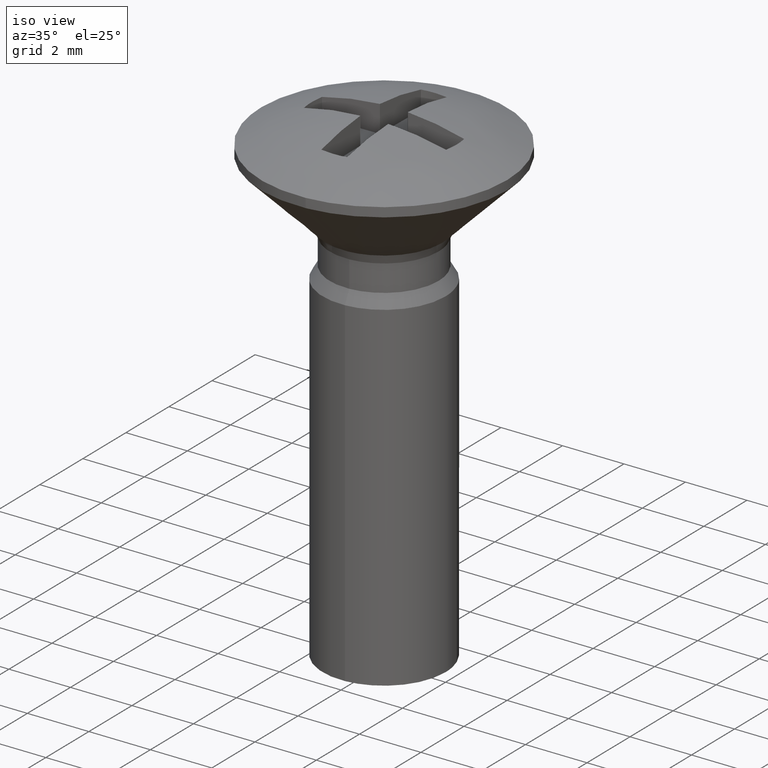
[diagram: clean part render]
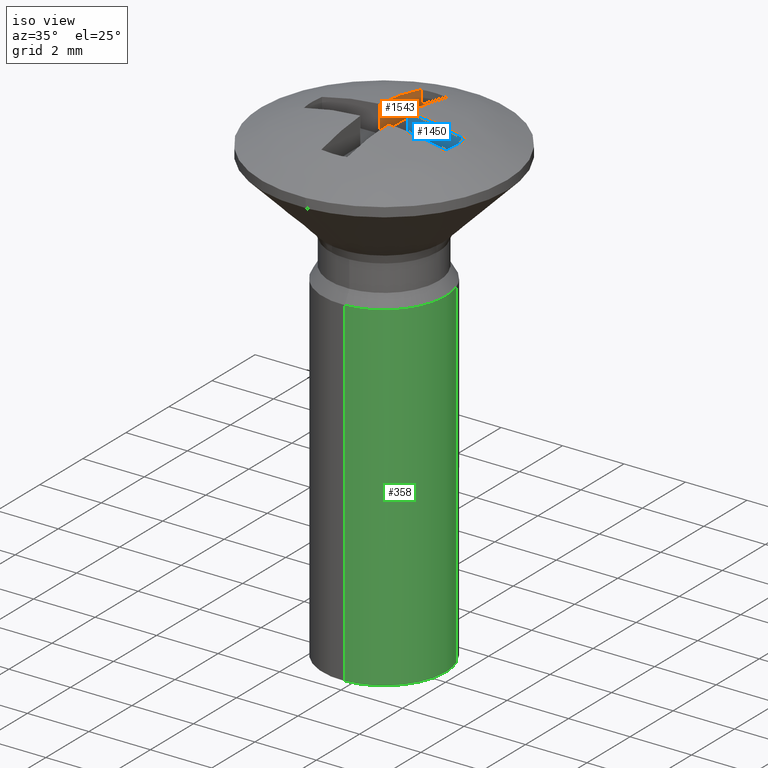
[diagram: same view with three faces highlighted in distinct colors, each labeled with its STEP entity id]
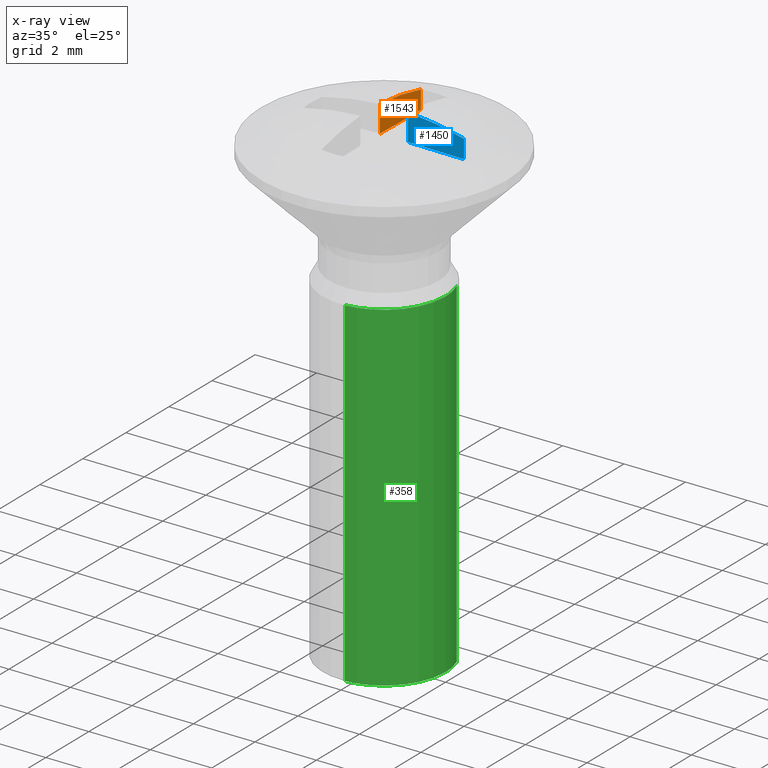
[diagram: x-ray of the same camera — body ghosted, the three highlighted faces saturated]
A machine part, iso view with three faces highlighted in distinct colors.
The next image is the same camera in x-ray (body ghosted, the three faces saturated) — at least one of them is partly hidden behind the body in this view.
Their STEP definitions:

[orange] entity #1543 — the highlighted face is a freeform B-spline surface patch.
#1029=CARTESIAN_POINT('',(-0.452394242445018,0.452593227179430,0.0));
#1030=VERTEX_POINT('',#1029);
#1031=CARTESIAN_POINT('',(-0.420014611924039,2.312160834753995,0.0));
#1032=VERTEX_POINT('',#1031);
#1033=CARTESIAN_POINT('',(-0.452394242445018,0.452593227179430,0.0));
#1034=CARTESIAN_POINT('',(-0.420014611924039,2.312160834753995,0.0));
#1035=QUASI_UNIFORM_CURVE('',1,(#1033,#1034),.UNSPECIFIED.,.F.,.U.);
#1036=EDGE_CURVE('',#1030,#1032,#1035,.T.);
#1161=CARTESIAN_POINT('',(-0.452394242445018,0.452593227179430,0.877989811291734));
#1162=VERTEX_POINT('',#1161);
#1163=CARTESIAN_POINT('',(-0.452394242445018,0.452593227179430,0.877989811291734));
#1164=CARTESIAN_POINT('',(-0.452394242445018,0.452593227179430,0.0));
#1165=QUASI_UNIFORM_CURVE('',1,(#1163,#1164),.UNSPECIFIED.,.F.,.U.);
#1166=EDGE_CURVE('',#1162,#1030,#1165,.T.);
#1495=CARTESIAN_POINT('',(-0.420014611924039,2.312160834753995,0.599434616879058));
#1496=VERTEX_POINT('',#1495);
#1510=CARTESIAN_POINT('',(-0.420014611924039,2.312160834753995,0.599434616879058));
#1511=CARTESIAN_POINT('',(-0.420014611924039,2.312160834753995,0.0));
#1512=QUASI_UNIFORM_CURVE('',1,(#1510,#1511),.UNSPECIFIED.,.F.,.U.);
#1513=EDGE_CURVE('',#1496,#1032,#1512,.T.);
#1520=CARTESIAN_POINT('',(-0.418397251266016,2.405046128410401,-0.043855589372308));
#1521=CARTESIAN_POINT('',(-0.454011605708511,0.359707783890555,-0.043855589372308));
#1522=CARTESIAN_POINT('',(-0.418397251266016,2.405046128410401,0.921845424213563));
#1523=CARTESIAN_POINT('',(-0.454011605708511,0.359707783890555,0.921845424213563));
#1524=B_SPLINE_SURFACE_WITH_KNOTS('',1,1,((#1520,#1522),(#1521,#1523)),.UNSPECIFIED.,.F.,.F.,.U.,(2,2),(2,2),(0.0,2.045648387628124),(0.041708334948495,0.958291687403247),.UNSPECIFIED.);
#1525=ORIENTED_EDGE('',*,*,#1166,.T.);
#1526=ORIENTED_EDGE('',*,*,#1036,.T.);
#1527=ORIENTED_EDGE('',*,*,#1513,.F.);
#1528=CARTESIAN_POINT('',(-0.452394242445018,0.452593227179430,0.877989811291734));
#1529=CARTESIAN_POINT('',(-0.435958736481214,1.396487089235294,0.832936135225205));
#1530=CARTESIAN_POINT('',(-0.420014611924039,2.312160834753995,0.599434616879058));
#1538=(BOUNDED_CURVE()B_SPLINE_CURVE(2,(#1528,#1529,#1530),.UNSPECIFIED.,.F.,.U.)CURVE()GEOMETRIC_REPRESENTATION_ITEM()QUASI_UNIFORM_CURVE()RATIONAL_B_SPLINE_CURVE((1.0,0.994905889874831,1.0))REPRESENTATION_ITEM(''));
#1539=EDGE_CURVE('',#1162,#1496,#1538,.T.);
#1540=ORIENTED_EDGE('',*,*,#1539,.F.);
#1541=EDGE_LOOP('',(#1525,#1526,#1527,#1540));
#1542=FACE_OUTER_BOUND('',#1541,.T.);
#1543=ADVANCED_FACE('',(#1542),#1524,.F.);

[blue] entity #1450 — the highlighted face is a freeform B-spline surface patch.
#1103=CARTESIAN_POINT('',(2.312163372429150,0.420000641900767,0.0));
#1104=VERTEX_POINT('',#1103);
#1118=CARTESIAN_POINT('',(0.452425794675152,0.452592674224369,0.0));
#1119=VERTEX_POINT('',#1118);
#1120=CARTESIAN_POINT('',(0.452425794675152,0.452592674224369,0.0));
#1121=CARTESIAN_POINT('',(2.312163372429150,0.420000641900767,0.0));
#1122=QUASI_UNIFORM_CURVE('',1,(#1120,#1121),.UNSPECIFIED.,.F.,.U.);
#1123=EDGE_CURVE('',#1119,#1104,#1122,.T.);
#1396=CARTESIAN_POINT('',(2.312163372429150,0.420000641900767,0.599434616879058));
#1397=VERTEX_POINT('',#1396);
#1411=CARTESIAN_POINT('',(2.312163372429150,0.420000641900767,0.599434616879058));
#1412=CARTESIAN_POINT('',(2.312163372429150,0.420000641900767,0.0));
#1413=QUASI_UNIFORM_CURVE('',1,(#1411,#1412),.UNSPECIFIED.,.F.,.U.);
#1414=EDGE_CURVE('',#1397,#1104,#1413,.T.);
#1421=CARTESIAN_POINT('',(2.405057243375545,0.418372670255323,-0.043855511048906));
#1422=CARTESIAN_POINT('',(0.359531857219359,0.454220647035396,-0.043855511048906));
#1423=CARTESIAN_POINT('',(2.405057243375545,0.418372670255323,0.921843777853990));
#1424=CARTESIAN_POINT('',(0.359531857219359,0.454220647035396,0.921843777853990));
#1425=B_SPLINE_SURFACE_WITH_KNOTS('',1,1,((#1421,#1423),(#1422,#1424)),.UNSPECIFIED.,.F.,.F.,.U.,(2,2),(2,2),(0.0,2.045839481202921),(0.041708337925747,0.958291624821350),.UNSPECIFIED.);
#1426=CARTESIAN_POINT('',(0.452425794675152,0.452592674224370,0.877988306054220));
#1427=VERTEX_POINT('',#1426);
#1428=CARTESIAN_POINT('',(0.452425794675152,0.452592674224370,0.877988306054220));
#1429=CARTESIAN_POINT('',(0.452425794675152,0.452592674224369,0.0));
#1430=QUASI_UNIFORM_CURVE('',1,(#1428,#1429),.UNSPECIFIED.,.F.,.U.);
#1431=EDGE_CURVE('',#1427,#1119,#1430,.T.);
#1432=ORIENTED_EDGE('',*,*,#1431,.T.);
#1433=ORIENTED_EDGE('',*,*,#1123,.T.);
#1434=ORIENTED_EDGE('',*,*,#1414,.F.);
#1435=CARTESIAN_POINT('',(0.452425794675152,0.452592674224370,0.877988306054220));
#1436=CARTESIAN_POINT('',(1.396405856426563,0.436049357009370,0.832952986524636));
#1437=CARTESIAN_POINT('',(2.312163372429150,0.420000641900767,0.599434616879058));
#1445=(BOUNDED_CURVE()B_SPLINE_CURVE(2,(#1435,#1436,#1437),.UNSPECIFIED.,.F.,.U.)CURVE()GEOMETRIC_REPRESENTATION_ITEM()QUASI_UNIFORM_CURVE()RATIONAL_B_SPLINE_CURVE((1.0,0.994904944985566,1.0))REPRESENTATION_ITEM(''));
#1446=EDGE_CURVE('',#1427,#1397,#1445,.T.);
#1447=ORIENTED_EDGE('',*,*,#1446,.F.);
#1448=EDGE_LOOP('',(#1432,#1433,#1434,#1447));
#1449=FACE_OUTER_BOUND('',#1448,.T.);
#1450=ADVANCED_FACE('',(#1449),#1425,.F.);

[green] entity #358 — the highlighted face is a freeform B-spline surface patch.
#260=CARTESIAN_POINT('',(1.865687525834303,0.720806731012730,-3.675594999999999));
#261=CARTESIAN_POINT('',(1.868991185378410,0.712011106517051,-3.675595000000000));
#262=CARTESIAN_POINT('',(1.977928038730302,0.421978903430817,-3.675594999999999));
#263=CARTESIAN_POINT('',(1.996269596843733,0.122097079069714,-3.675595000000000));
#264=CARTESIAN_POINT('',(2.118366675913447,-1.874172517774020,-3.675594999999999));
#265=CARTESIAN_POINT('',(0.113641494144958,-1.996786762572635,-3.675594999999998));
#266=CARTESIAN_POINT('',(0.105215527588926,-1.997302116764504,-3.675595000000000));
#267=CARTESIAN_POINT('',(1.865687525834303,0.720806731012730,-15.283110125000000));
#268=CARTESIAN_POINT('',(1.868991185378410,0.712011106517051,-15.283110125000000));
#269=CARTESIAN_POINT('',(1.977928038730302,0.421978903430817,-15.283110125000002));
#270=CARTESIAN_POINT('',(1.996269596843733,0.122097079069714,-15.283110125000000));
#271=CARTESIAN_POINT('',(2.118366675913447,-1.874172517774020,-15.283110125000009));
#272=CARTESIAN_POINT('',(0.113641494144958,-1.996786762572635,-15.283110124999997));
#273=CARTESIAN_POINT('',(0.105215527588926,-1.997302116764504,-15.283110125000009));
#281=(BOUNDED_SURFACE()B_SPLINE_SURFACE(2,1,((#260,#267),(#261,#268),(#262,#269),(#263,#270),(#264,#271),(#265,#272),(#266,#273)),.UNSPECIFIED.,.F.,.F.,.U.)B_SPLINE_SURFACE_WITH_KNOTS((3,1,2,1,3),(2,2),(0.0,0.019882262134275,0.682623961931227,3.996332460915986,4.016217039600720),(0.0,11.607515125000001),.UNSPECIFIED.)GEOMETRIC_REPRESENTATION_ITEM()RATIONAL_B_SPLINE_SURFACE(((0.904165337622624,0.904165337622624),(0.905219753801160,0.905219753801160),(0.941421356237309,0.941421356237309),(1.0,1.0),(0.707106781186548,0.707106781186548),(1.001757565053627,1.001757565053627),(1.003515130107253,1.003515130107253)))REPRESENTATION_ITEM('')SURFACE());
#282=CARTESIAN_POINT('',(1.872287157552654,0.703235948784903,-3.951800000000000));
#283=VERTEX_POINT('',#282);
#284=CARTESIAN_POINT('',(2.0,0.0,-3.951800000000000));
#285=VERTEX_POINT('',#284);
#286=CARTESIAN_POINT('',(1.872287157552654,0.703235948784903,-3.951800000000000));
#287=CARTESIAN_POINT('',(2.000000000000000,0.363214772135462,-3.951800000000000));
#288=CARTESIAN_POINT('',(2.0,0.0,-3.951800000000000));
#296=(BOUNDED_CURVE()B_SPLINE_CURVE(2,(#286,#287,#288),.UNSPECIFIED.,.F.,.U.)B_SPLINE_CURVE_WITH_KNOTS((3,3),(0.440284170898613,0.500000000000000),.UNSPECIFIED.)CURVE()GEOMETRIC_REPRESENTATION_ITEM()RATIONAL_B_SPLINE_CURVE((0.893499554635403,0.930038554401523,1.0))REPRESENTATION_ITEM(''));
#297=EDGE_CURVE('',#283,#285,#296,.T.);
#298=ORIENTED_EDGE('',*,*,#297,.T.);
#299=CARTESIAN_POINT('',(0.122097079072118,-1.996269596843831,-3.951800000000837));
#300=VERTEX_POINT('',#299);
#301=CARTESIAN_POINT('',(2.0,0.0,-3.951800000000000));
#302=CARTESIAN_POINT('',(2.000000000000000,-1.881412133802378,-3.951800000000000));
#303=CARTESIAN_POINT('',(0.122097079072118,-1.996269596843831,-3.951800000000837));
#311=(BOUNDED_CURVE()B_SPLINE_CURVE(2,(#301,#302,#303),.UNSPECIFIED.,.F.,.U.)B_SPLINE_CURVE_WITH_KNOTS((3,3),(0.500000000000000,0.739332962241143),.UNSPECIFIED.)CURVE()GEOMETRIC_REPRESENTATION_ITEM()RATIONAL_B_SPLINE_CURVE((1.0,0.719603993284132,0.976072041671434))REPRESENTATION_ITEM(''));
#312=EDGE_CURVE('',#285,#300,#311,.T.);
#313=ORIENTED_EDGE('',*,*,#312,.T.);
#314=CARTESIAN_POINT('',(0.122095105456574,-1.996269717553126,-15.0));
#315=VERTEX_POINT('',#314);
#316=CARTESIAN_POINT('',(0.122097079072118,-1.996269596843831,-3.951800000000837));
#317=CARTESIAN_POINT('',(0.122095105456574,-1.996269717553126,-15.0));
#318=QUASI_UNIFORM_CURVE('',1,(#316,#317),.UNSPECIFIED.,.F.,.U.);
#319=EDGE_CURVE('',#300,#315,#318,.T.);
#320=ORIENTED_EDGE('',*,*,#319,.T.);
#321=CARTESIAN_POINT('',(2.0,0.0,-15.0));
#322=VERTEX_POINT('',#321);
#323=CARTESIAN_POINT('',(2.0,0.0,-15.0));
#324=CARTESIAN_POINT('',(1.999999999999999,-1.881413997347252,-15.000000000000004));
#325=CARTESIAN_POINT('',(0.122095105456574,-1.996269717553126,-15.000000000000005));
#333=(BOUNDED_CURVE()B_SPLINE_CURVE(2,(#323,#324,#325),.UNSPECIFIED.,.F.,.U.)B_SPLINE_CURVE_WITH_KNOTS((3,3),(0.500000000000000,0.739333132830478),.UNSPECIFIED.)CURVE()GEOMETRIC_REPRESENTATION_ITEM()RATIONAL_B_SPLINE_CURVE((1.0,0.719603793426295,0.976072407277123))REPRESENTATION_ITEM(''));
#334=EDGE_CURVE('',#322,#315,#333,.T.);
#335=ORIENTED_EDGE('',*,*,#334,.F.);
#336=CARTESIAN_POINT('',(1.872288059860095,0.703233546482770,-15.0));
#337=VERTEX_POINT('',#336);
#338=CARTESIAN_POINT('',(1.872288059860095,0.703233546482770,-15.0));
#339=CARTESIAN_POINT('',(2.000000000000000,0.363213446733339,-15.000000000000002));
#340=CARTESIAN_POINT('',(2.0,0.0,-15.0));
#348=(BOUNDED_CURVE()B_SPLINE_CURVE(2,(#338,#339,#340),.UNSPECIFIED.,.F.,.U.)B_SPLINE_CURVE_WITH_KNOTS((3,3),(0.440284373561716,0.500000000000000),.UNSPECIFIED.)CURVE()GEOMETRIC_REPRESENTATION_ITEM()RATIONAL_B_SPLINE_CURVE((0.893499802647318,0.930038791836117,1.0))REPRESENTATION_ITEM(''));
#349=EDGE_CURVE('',#337,#322,#348,.T.);
#350=ORIENTED_EDGE('',*,*,#349,.F.);
#351=CARTESIAN_POINT('',(1.872287157552654,0.703235948784903,-3.951800000000000));
#352=CARTESIAN_POINT('',(1.872288059860095,0.703233546482770,-15.0));
#353=QUASI_UNIFORM_CURVE('',1,(#351,#352),.UNSPECIFIED.,.F.,.U.);
#354=EDGE_CURVE('',#283,#337,#353,.T.);
#355=ORIENTED_EDGE('',*,*,#354,.F.);
#356=EDGE_LOOP('',(#298,#313,#320,#335,#350,#355));
#357=FACE_OUTER_BOUND('',#356,.T.);
#358=ADVANCED_FACE('',(#357),#281,.T.);